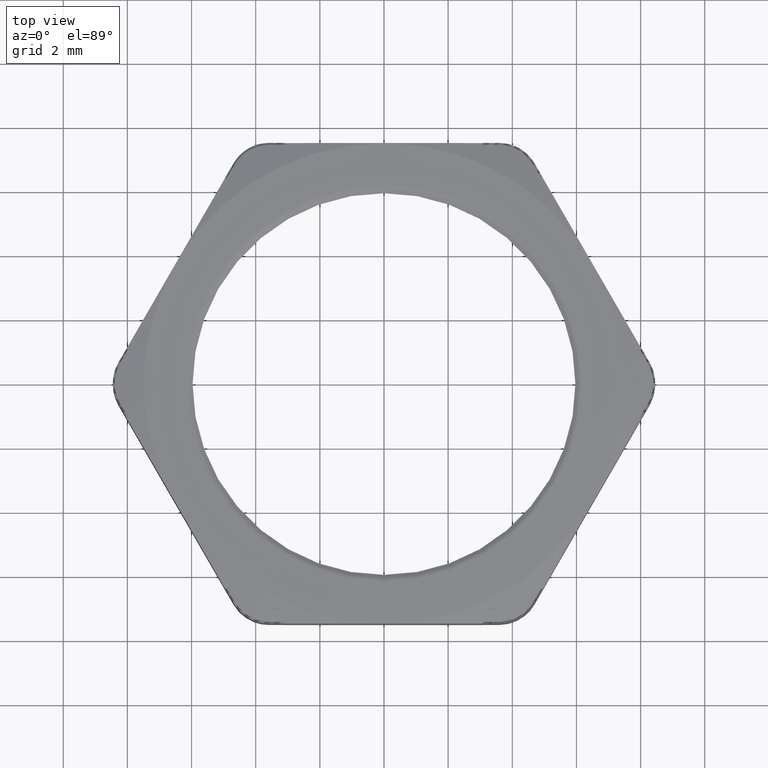
[diagram: clean part render]
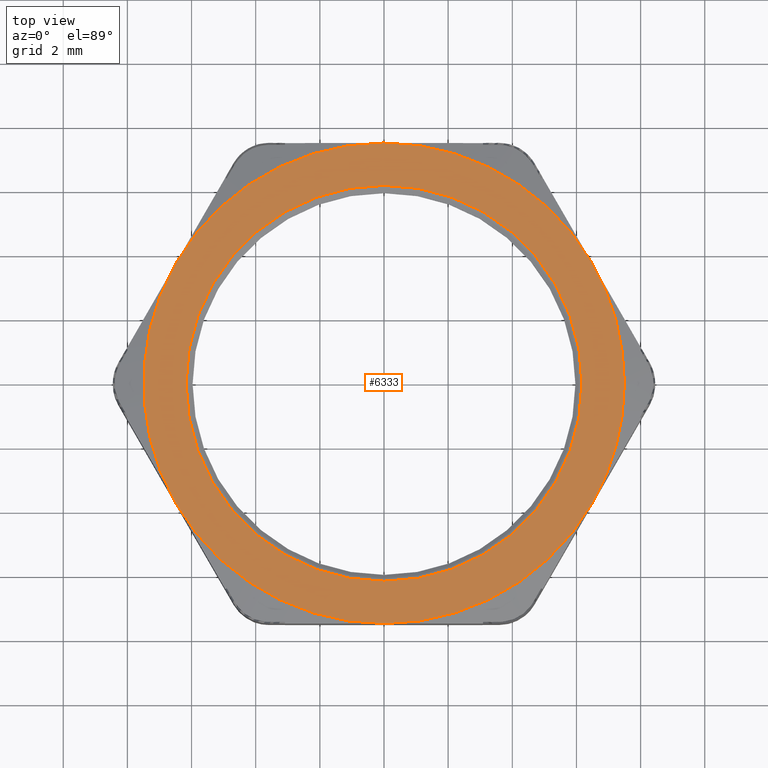
[diagram: same view with one face highlighted and labeled with its STEP entity id]
A machine part, top view. The second image highlights one B-rep face of the part: STEP entity #6333.
In plain terms, the highlighted planar face has unit normal (0, 0, -1).
Its self-contained STEP definition (entity closure, byte-faithful):
#635 = EDGE_CURVE ( 'NONE', #636, #641, #2090, .T. ) ;
#636 = VERTEX_POINT ( 'NONE', #2085 ) ;
#641 = VERTEX_POINT ( 'NONE', #2068 ) ;
#769 = EDGE_CURVE ( 'NONE', #770, #771, #2303, .T. ) ;
#770 = VERTEX_POINT ( 'NONE', #2336 ) ;
#771 = VERTEX_POINT ( 'NONE', #2335 ) ;
#851 = VERTEX_POINT ( 'NONE', #2450 ) ;
#918 = VERTEX_POINT ( 'NONE', #2607 ) ;
#929 = VERTEX_POINT ( 'NONE', #2590 ) ;
#959 = VERTEX_POINT ( 'NONE', #2694 ) ;
#2068 = CARTESIAN_POINT ( 'NONE',  ( 0.2429999999999999700, 2.975891721928067900E-017, 0.1100000000000000000 ) ) ;
#2085 = CARTESIAN_POINT ( 'NONE',  ( -0.2429999999999999700, 0.0000000000000000000, 0.1100000000000000000 ) ) ;
#2086 = DIRECTION ( 'NONE',  ( -1.000000000000000000, 0.0000000000000000000, 0.0000000000000000000 ) ) ;
#2087 = DIRECTION ( 'NONE',  ( 0.0000000000000000000, 0.0000000000000000000, -1.000000000000000000 ) ) ;
#2088 = CARTESIAN_POINT ( 'NONE',  ( 0.0000000000000000000, 0.0000000000000000000, 0.1100000000000000000 ) ) ;
#2089 = AXIS2_PLACEMENT_3D ( 'NONE', #2088, #2087, #2086 ) ;
#2090 = CIRCLE ( 'NONE', #2089, 0.2429999999999999700 ) ;
#2303 = CIRCLE ( 'NONE', #2340, 0.2950000000000001500 ) ;
#2335 = CARTESIAN_POINT ( 'NONE',  ( 0.2950000000000001500, 0.0000000000000000000, 0.1100000000000000000 ) ) ;
#2336 = CARTESIAN_POINT ( 'NONE',  ( 0.2554774941164094600, 0.1475000000000000200, 0.1100000000000000000 ) ) ;
#2337 = DIRECTION ( 'NONE',  ( -1.000000000000000000, 0.0000000000000000000, 0.0000000000000000000 ) ) ;
#2338 = DIRECTION ( 'NONE',  ( 0.0000000000000000000, 0.0000000000000000000, -1.000000000000000000 ) ) ;
#2339 = CARTESIAN_POINT ( 'NONE',  ( 0.0000000000000000000, 0.0000000000000000000, 0.1100000000000000000 ) ) ;
#2340 = AXIS2_PLACEMENT_3D ( 'NONE', #2339, #2338, #2337 ) ;
#2450 = CARTESIAN_POINT ( 'NONE',  ( -0.2554774941164095800, -0.1474999999999998800, 0.1100000000000000000 ) ) ;
#2590 = CARTESIAN_POINT ( 'NONE',  ( 0.2554774941164094600, -0.1475000000000001000, 0.1100000000000000000 ) ) ;
#2607 = CARTESIAN_POINT ( 'NONE',  ( -0.2554774941164094600, 0.1475000000000000500, 0.1100000000000000000 ) ) ;
#2694 = CARTESIAN_POINT ( 'NONE',  ( 8.871936606715508900E-017, -0.2950000000000001000, 0.1100000000000000000 ) ) ;
#2948 = DIRECTION ( 'NONE',  ( -1.000000000000000000, 0.0000000000000000000, 0.0000000000000000000 ) ) ;
#2949 = DIRECTION ( 'NONE',  ( 0.0000000000000000000, 0.0000000000000000000, -1.000000000000000000 ) ) ;
#2950 = CARTESIAN_POINT ( 'NONE',  ( 0.0000000000000000000, 0.0000000000000000000, 0.1100000000000000000 ) ) ;
#2951 = AXIS2_PLACEMENT_3D ( 'NONE', #2950, #2949, #2948 ) ;
#2952 = CIRCLE ( 'NONE', #2951, 0.2950000000000001500 ) ;
#2958 = DIRECTION ( 'NONE',  ( 1.000000000000000000, 0.0000000000000000000, 0.0000000000000000000 ) ) ;
#2959 = DIRECTION ( 'NONE',  ( 0.0000000000000000000, 0.0000000000000000000, 1.000000000000000000 ) ) ;
#2960 = AXIS2_PLACEMENT_3D ( 'NONE', #2967, #2959, #2958 ) ;
#2961 = CIRCLE ( 'NONE', #2960, 0.2950000000000001000 ) ;
#2967 = CARTESIAN_POINT ( 'NONE',  ( 0.0000000000000000000, 0.0000000000000000000, 0.1100000000000000000 ) ) ;
#3122 = CARTESIAN_POINT ( 'NONE',  ( -2.957312202238501900E-017, 0.2950000000000001000, 0.1100000000000000000 ) ) ;
#4976 = CARTESIAN_POINT ( 'NONE',  ( 0.0000000000000000000, 0.0000000000000000000, 0.1100000000000000000 ) ) ;
#4977 = CIRCLE ( 'NONE', #5021, 0.2950000000000001500 ) ;
#4992 = DIRECTION ( 'NONE',  ( -1.000000000000000000, 0.0000000000000000000, 0.0000000000000000000 ) ) ;
#4993 = DIRECTION ( 'NONE',  ( 0.0000000000000000000, 0.0000000000000000000, -1.000000000000000000 ) ) ;
#4994 = CARTESIAN_POINT ( 'NONE',  ( 2.731847993664263200E-016, 0.5900000000000001900, 0.1100000000000000000 ) ) ;
#4995 = AXIS2_PLACEMENT_3D ( 'NONE', #4994, #4993, #4992 ) ;
#4996 = PLANE ( 'NONE',  #4995 ) ;
#4997 = FACE_OUTER_BOUND ( 'NONE', #6331, .T. ) ;
#4998 = FACE_BOUND ( 'NONE', #6305, .T. ) ;
#4999 = DIRECTION ( 'NONE',  ( -1.000000000000000000, 0.0000000000000000000, 0.0000000000000000000 ) ) ;
#5000 = DIRECTION ( 'NONE',  ( 0.0000000000000000000, 0.0000000000000000000, -1.000000000000000000 ) ) ;
#5001 = CARTESIAN_POINT ( 'NONE',  ( 0.0000000000000000000, 0.0000000000000000000, 0.1100000000000000000 ) ) ;
#5002 = AXIS2_PLACEMENT_3D ( 'NONE', #5001, #5000, #4999 ) ;
#5003 = CIRCLE ( 'NONE', #5002, 0.2429999999999999700 ) ;
#5004 = DIRECTION ( 'NONE',  ( -1.000000000000000000, 0.0000000000000000000, 0.0000000000000000000 ) ) ;
#5005 = DIRECTION ( 'NONE',  ( 0.0000000000000000000, 0.0000000000000000000, -1.000000000000000000 ) ) ;
#5006 = CARTESIAN_POINT ( 'NONE',  ( 0.0000000000000000000, 0.0000000000000000000, 0.1100000000000000000 ) ) ;
#5007 = AXIS2_PLACEMENT_3D ( 'NONE', #5006, #5005, #5004 ) ;
#5008 = CIRCLE ( 'NONE', #5007, 0.2950000000000001500 ) ;
#5009 = DIRECTION ( 'NONE',  ( -1.000000000000000000, 0.0000000000000000000, 0.0000000000000000000 ) ) ;
#5010 = DIRECTION ( 'NONE',  ( 0.0000000000000000000, 0.0000000000000000000, -1.000000000000000000 ) ) ;
#5011 = CARTESIAN_POINT ( 'NONE',  ( 0.0000000000000000000, 0.0000000000000000000, 0.1100000000000000000 ) ) ;
#5012 = AXIS2_PLACEMENT_3D ( 'NONE', #5011, #5010, #5009 ) ;
#5013 = CIRCLE ( 'NONE', #5012, 0.2950000000000001500 ) ;
#5014 = DIRECTION ( 'NONE',  ( -1.000000000000000000, 0.0000000000000000000, 0.0000000000000000000 ) ) ;
#5015 = DIRECTION ( 'NONE',  ( 0.0000000000000000000, 0.0000000000000000000, -1.000000000000000000 ) ) ;
#5016 = CARTESIAN_POINT ( 'NONE',  ( 0.0000000000000000000, 0.0000000000000000000, 0.1100000000000000000 ) ) ;
#5017 = AXIS2_PLACEMENT_3D ( 'NONE', #5016, #5015, #5014 ) ;
#5018 = CIRCLE ( 'NONE', #5017, 0.2950000000000001500 ) ;
#5019 = DIRECTION ( 'NONE',  ( -1.000000000000000000, 0.0000000000000000000, 0.0000000000000000000 ) ) ;
#5020 = DIRECTION ( 'NONE',  ( 0.0000000000000000000, 0.0000000000000000000, -1.000000000000000000 ) ) ;
#5021 = AXIS2_PLACEMENT_3D ( 'NONE', #4976, #5020, #5019 ) ;
#5139 = EDGE_CURVE ( 'NONE', #770, #5219, #2961, .T. ) ;
#5140 = ORIENTED_EDGE ( 'NONE', *, *, #5139, .T. ) ;
#5142 = ORIENTED_EDGE ( 'NONE', *, *, #769, .F. ) ;
#5146 = EDGE_CURVE ( 'NONE', #771, #929, #2952, .T. ) ;
#5150 = ORIENTED_EDGE ( 'NONE', *, *, #5146, .F. ) ;
#5219 = VERTEX_POINT ( 'NONE', #3122 ) ;
#6305 = EDGE_LOOP ( 'NONE', ( #6329, #6330 ) ) ;
#6321 = ORIENTED_EDGE ( 'NONE', *, *, #6326, .F. ) ;
#6322 = EDGE_CURVE ( 'NONE', #929, #959, #4977, .T. ) ;
#6323 = ORIENTED_EDGE ( 'NONE', *, *, #6322, .F. ) ;
#6324 = EDGE_CURVE ( 'NONE', #959, #851, #5018, .T. ) ;
#6325 = ORIENTED_EDGE ( 'NONE', *, *, #6324, .F. ) ;
#6326 = EDGE_CURVE ( 'NONE', #918, #5219, #5013, .T. ) ;
#6327 = ORIENTED_EDGE ( 'NONE', *, *, #6328, .F. ) ;
#6328 = EDGE_CURVE ( 'NONE', #851, #918, #5008, .T. ) ;
#6329 = ORIENTED_EDGE ( 'NONE', *, *, #635, .T. ) ;
#6330 = ORIENTED_EDGE ( 'NONE', *, *, #6332, .T. ) ;
#6331 = EDGE_LOOP ( 'NONE', ( #6321, #6327, #6325, #6323, #5150, #5142, #5140 ) ) ;
#6332 = EDGE_CURVE ( 'NONE', #641, #636, #5003, .T. ) ;
#6333 = ADVANCED_FACE ( 'NONE', ( #4998, #4997 ), #4996, .F. ) ;